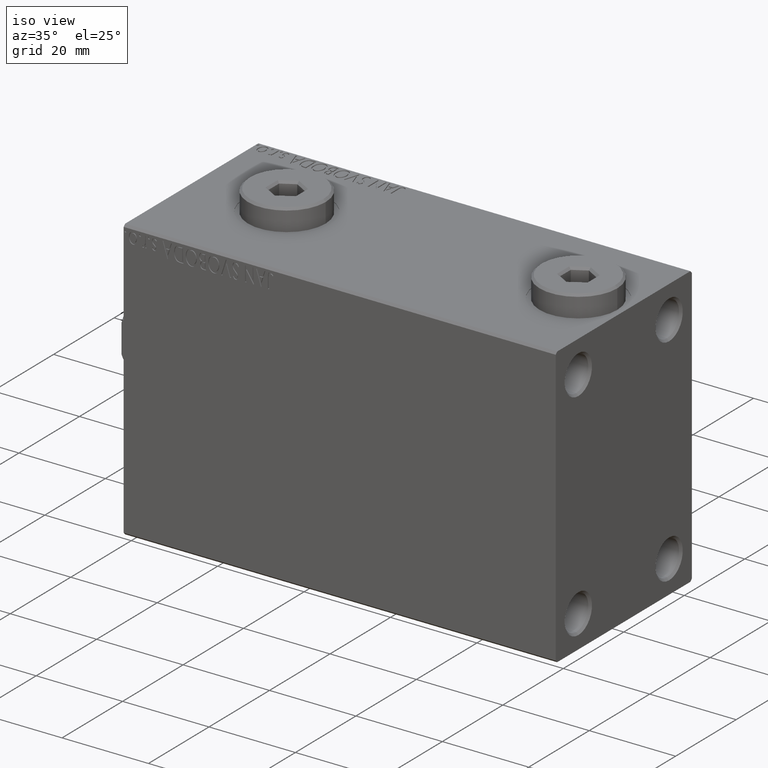
[diagram: clean part render]
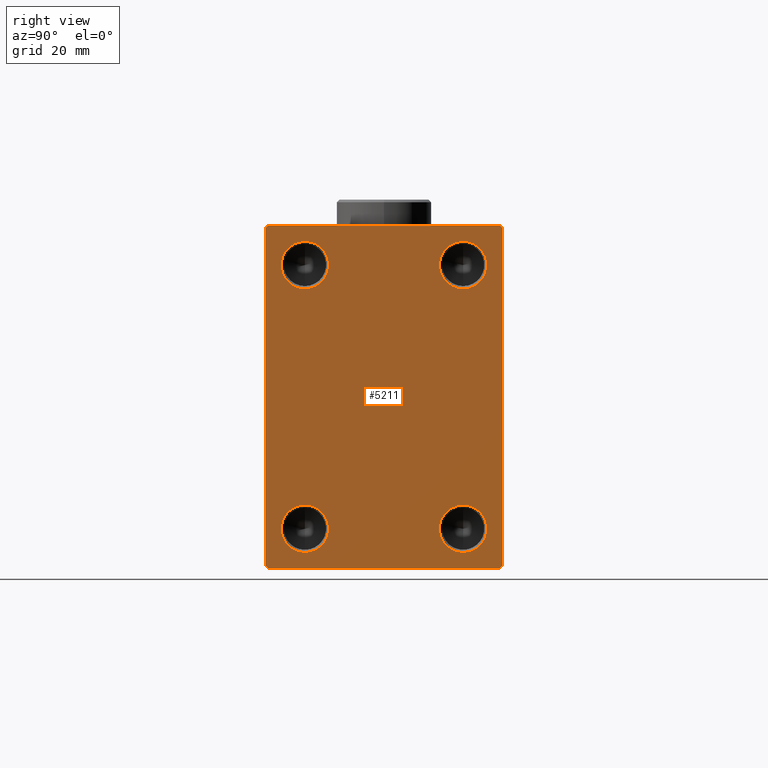
[diagram: tour spotlight — one face highlighted and labeled with its STEP entity id]
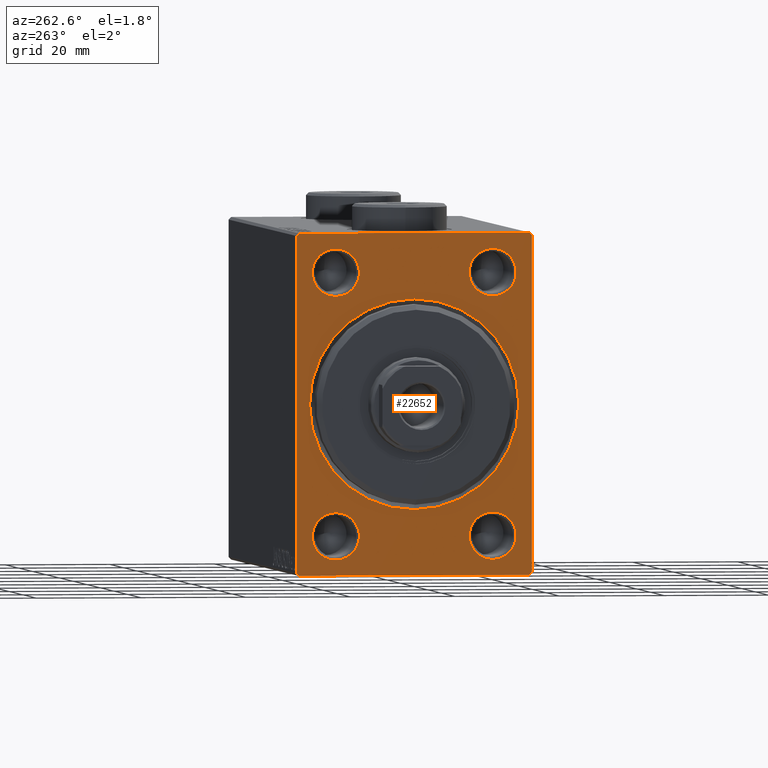
[diagram: tour spotlight — one face highlighted and labeled with its STEP entity id]
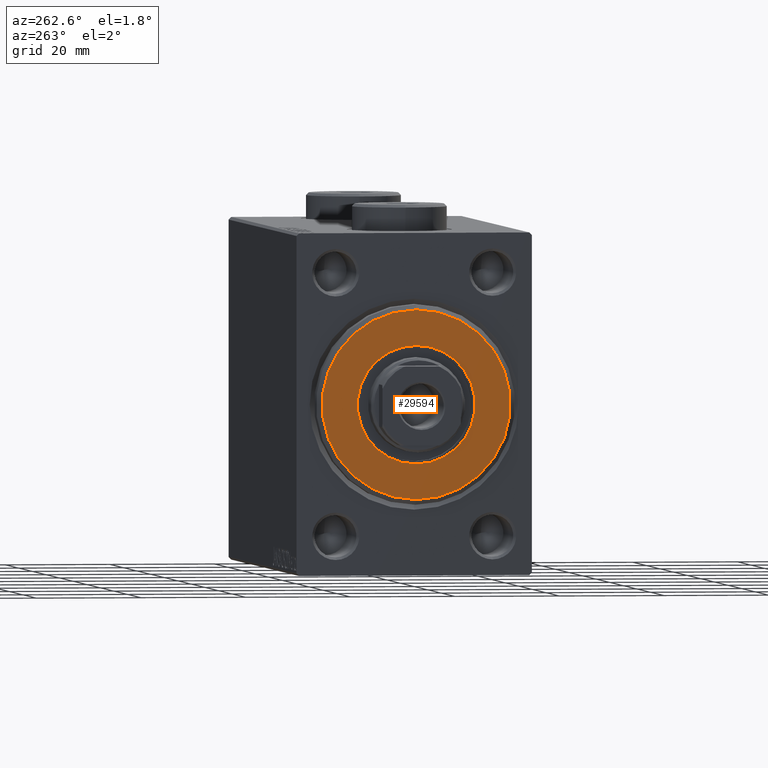
[diagram: tour spotlight — one face highlighted and labeled with its STEP entity id]
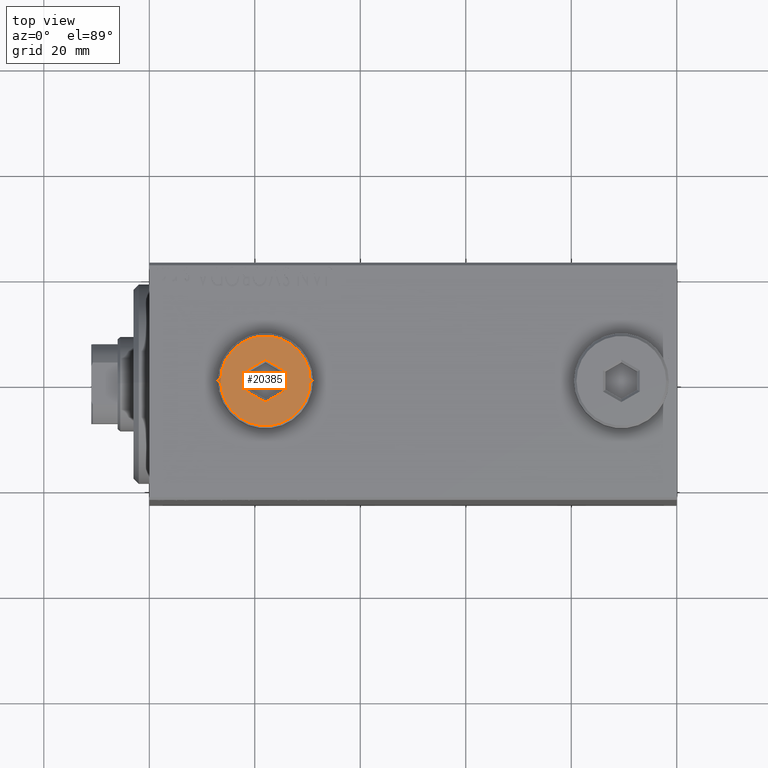
[diagram: tour spotlight — one face highlighted and labeled with its STEP entity id]
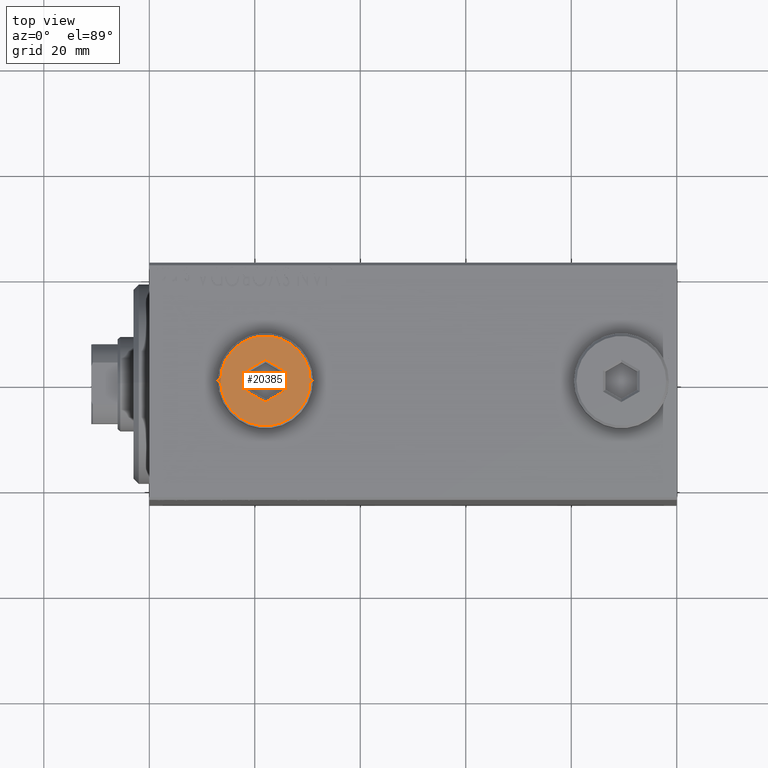
[diagram: tour spotlight — one face highlighted and labeled with its STEP entity id]
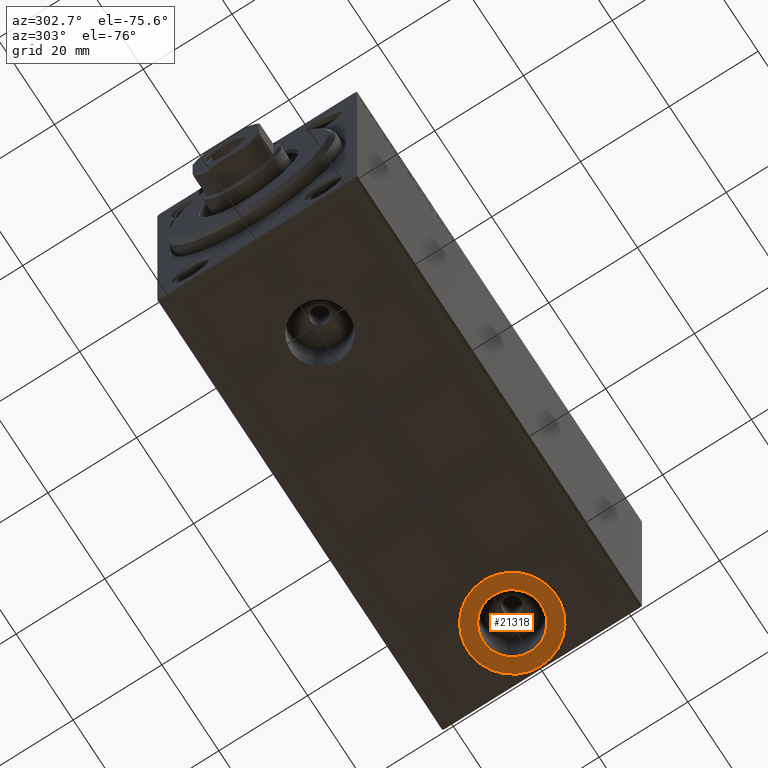
[diagram: tour spotlight — one face highlighted and labeled with its STEP entity id]
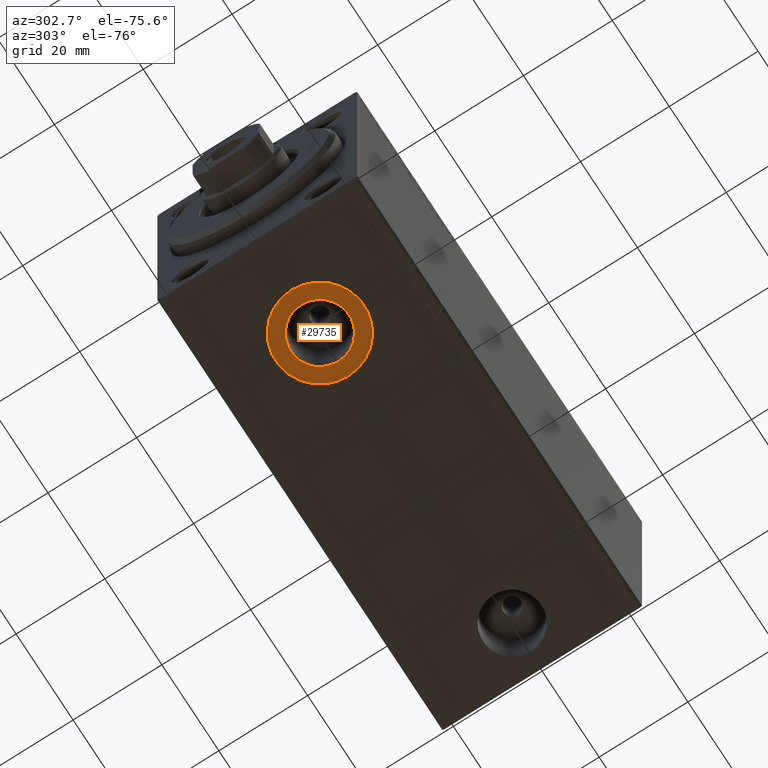
[diagram: tour spotlight — one face highlighted and labeled with its STEP entity id]
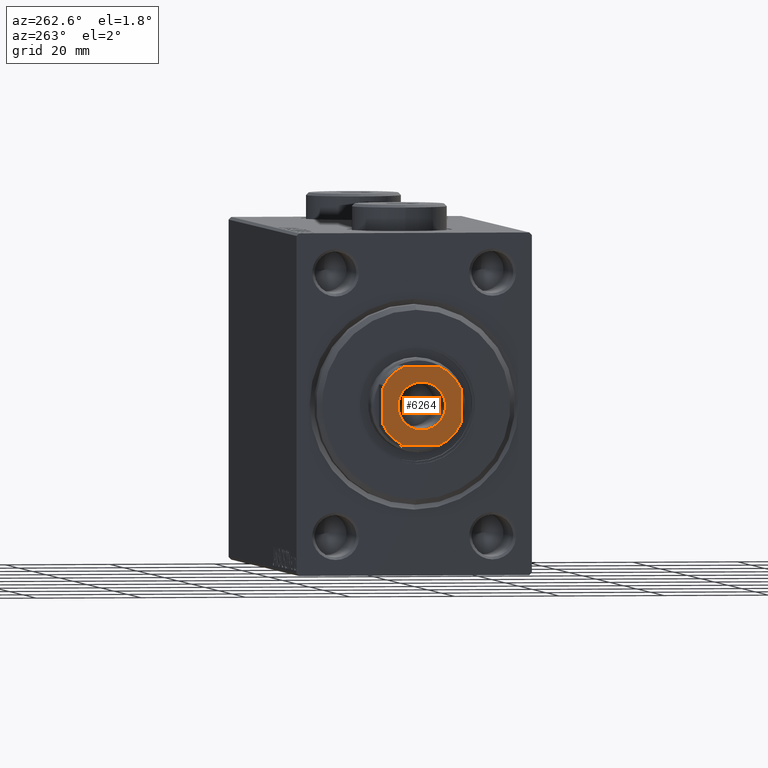
[diagram: tour spotlight — one face highlighted and labeled with its STEP entity id]
A machine part: a face-by-face anatomy tour. The part has 935 B-rep faces; the first image is the clean iso view, then the 8 largest visible faces are spotlighted one at a time (largest first), each with its STEP entity span.

Face 1 — right view, entity #5211. In plain terms, the highlighted planar face has unit normal (1, 0, 0).
Definition (entity closure, byte-faithful):
#15 = CARTESIAN_POINT ( 'NONE',  ( 100.0000000000000000, 27.25000000000033040, -27.24999999999957367 ) ) ;
#354 = LINE ( 'NONE', #38366, #7802 ) ;
#824 = DIRECTION ( 'NONE',  ( 1.000000000000000000, -0.000000000000000000, -0.000000000000000000 ) ) ;
#946 = EDGE_CURVE ( 'NONE', #22036, #9447, #10759, .T. ) ;
#979 = CARTESIAN_POINT ( 'NONE',  ( 100.0000000000000000, 15.00000000000000178, -25.00000000000000000 ) ) ;
#1039 = AXIS2_PLACEMENT_3D ( 'NONE', #13995, #11446, #21580 ) ;
#2747 = EDGE_CURVE ( 'NONE', #31197, #17331, #27390, .T. ) ;
#3081 = LINE ( 'NONE', #30039, #32066 ) ;
#3280 = EDGE_LOOP ( 'NONE', ( #26240, #3331 ) ) ;
#3331 = ORIENTED_EDGE ( 'NONE', *, *, #18116, .F. ) ;
#3932 = CARTESIAN_POINT ( 'NONE',  ( 100.0000000000000000, 15.00000000000000178, 25.00000000000000000 ) ) ;
#4527 = DIRECTION ( 'NONE',  ( 0.000000000000000000, -1.067522139062650425E-16, 1.000000000000000000 ) ) ;
#4807 = CARTESIAN_POINT ( 'NONE',  ( 100.0000000000000000, 15.00000000000000178, -20.49999999999996092 ) ) ;
#4895 = DIRECTION ( 'NONE',  ( 1.000000000000000000, -0.000000000000000000, -0.000000000000000000 ) ) ;
#4943 = DIRECTION ( 'NONE',  ( 1.000000000000000000, -0.000000000000000000, -0.000000000000000000 ) ) ;
#5125 = DIRECTION ( 'NONE',  ( 0.000000000000000000, 0.000000000000000000, -1.000000000000000000 ) ) ;
#5190 = DIRECTION ( 'NONE',  ( -0.000000000000000000, 0.7071067811865524577, -0.7071067811865426878 ) ) ;
#5211 = ADVANCED_FACE ( 'NONE', ( #38286, #10188, #13205, #9284, #37823 ), #27218, .T. ) ;
#5246 = DIRECTION ( 'NONE',  ( 0.000000000000000000, 0.000000000000000000, -1.000000000000000000 ) ) ;
#5982 = EDGE_CURVE ( 'NONE', #14556, #40033, #29246, .T. ) ;
#6303 = VERTEX_POINT ( 'NONE', #18774 ) ;
#6361 = AXIS2_PLACEMENT_3D ( 'NONE', #33029, #4943, #19223 ) ;
#6400 = EDGE_CURVE ( 'NONE', #22752, #31197, #25896, .T. ) ;
#6494 = ORIENTED_EDGE ( 'NONE', *, *, #5982, .F. ) ;
#7802 = VECTOR ( 'NONE', #35120, 1000.000000000000114 ) ;
#8128 = AXIS2_PLACEMENT_3D ( 'NONE', #979, #4895, #5125 ) ;
#8395 = CARTESIAN_POINT ( 'NONE',  ( 100.0000000000000000, 15.00000000000000178, 25.00000000000000000 ) ) ;
#8425 = DIRECTION ( 'NONE',  ( 0.000000000000000000, 0.000000000000000000, -1.000000000000000000 ) ) ;
#8460 = DIRECTION ( 'NONE',  ( 0.000000000000000000, 0.000000000000000000, -1.000000000000000000 ) ) ;
#8647 = DIRECTION ( 'NONE',  ( 1.000000000000000000, -0.000000000000000000, -0.000000000000000000 ) ) ;
#8690 = ORIENTED_EDGE ( 'NONE', *, *, #15760, .T. ) ;
#9106 = LINE ( 'NONE', #23134, #16018 ) ;
#9284 = FACE_BOUND ( 'NONE', #14331, .T. ) ;
#9447 = VERTEX_POINT ( 'NONE', #37685 ) ;
#9569 = EDGE_CURVE ( 'NONE', #9447, #22036, #27881, .T. ) ;
#9585 = CARTESIAN_POINT ( 'NONE',  ( 100.0000000000000000, 22.50000000000000000, 32.00000000000002132 ) ) ;
#10188 = FACE_BOUND ( 'NONE', #3280, .T. ) ;
#10392 = DIRECTION ( 'NONE',  ( -0.000000000000000000, 0.7071067811865376918, 0.7071067811865573427 ) ) ;
#10715 = CARTESIAN_POINT ( 'NONE',  ( 100.0000000000000000, -22.49999999999999289, -32.00000000000001421 ) ) ;
#10759 = CIRCLE ( 'NONE', #31304, 4.499999999999976019 ) ;
#11446 = DIRECTION ( 'NONE',  ( 1.000000000000000000, -0.000000000000000000, -0.000000000000000000 ) ) ;
#12033 = AXIS2_PLACEMENT_3D ( 'NONE', #29132, #824, #8425 ) ;
#12104 = DIRECTION ( 'NONE',  ( 0.000000000000000000, 0.000000000000000000, -1.000000000000000000 ) ) ;
#12109 = CARTESIAN_POINT ( 'NONE',  ( 100.0000000000000000, -15.00000000000000000, 20.50000000000003197 ) ) ;
#13205 = FACE_BOUND ( 'NONE', #43183, .T. ) ;
#13490 = ORIENTED_EDGE ( 'NONE', *, *, #27416, .T. ) ;
#13995 = CARTESIAN_POINT ( 'NONE',  ( 100.0000000000000000, 15.00000000000000178, -25.00000000000000000 ) ) ;
#14102 = ORIENTED_EDGE ( 'NONE', *, *, #45379, .T. ) ;
#14331 = EDGE_LOOP ( 'NONE', ( #20324, #18295 ) ) ;
#14523 = ORIENTED_EDGE ( 'NONE', *, *, #6400, .T. ) ;
#14555 = ORIENTED_EDGE ( 'NONE', *, *, #19927, .T. ) ;
#14556 = VERTEX_POINT ( 'NONE', #28038 ) ;
#14837 = CARTESIAN_POINT ( 'NONE',  ( 100.0000000000000000, 22.50000000000000000, 32.49999999999999289 ) ) ;
#14908 = ORIENTED_EDGE ( 'NONE', *, *, #44942, .T. ) ;
#14980 = CARTESIAN_POINT ( 'NONE',  ( 100.0000000000000000, 27.24999999999970157, 27.25000000000045830 ) ) ;
#15211 = LINE ( 'NONE', #14980, #29898 ) ;
#15706 = CIRCLE ( 'NONE', #12033, 4.499999999999976019 ) ;
#15760 = EDGE_CURVE ( 'NONE', #44081, #42212, #354, .T. ) ;
#15878 = ORIENTED_EDGE ( 'NONE', *, *, #2747, .T. ) ;
#16018 = VECTOR ( 'NONE', #4527, 1000.000000000000000 ) ;
#17331 = VERTEX_POINT ( 'NONE', #32280 ) ;
#18116 = EDGE_CURVE ( 'NONE', #39269, #31736, #26225, .T. ) ;
#18295 = ORIENTED_EDGE ( 'NONE', *, *, #42357, .F. ) ;
#18614 = DIRECTION ( 'NONE',  ( 1.000000000000000000, -0.000000000000000000, -0.000000000000000000 ) ) ;
#18667 = DIRECTION ( 'NONE',  ( -0.000000000000000000, -0.7071067811865573427, 0.7071067811865376918 ) ) ;
#18774 = CARTESIAN_POINT ( 'NONE',  ( 100.0000000000000000, 22.50000000000000711, -32.00000000000002132 ) ) ;
#19223 = DIRECTION ( 'NONE',  ( 0.000000000000000000, 0.000000000000000000, -1.000000000000000000 ) ) ;
#19659 = DIRECTION ( 'NONE',  ( 0.000000000000000000, 0.000000000000000000, -1.000000000000000000 ) ) ;
#19668 = EDGE_CURVE ( 'NONE', #6303, #26356, #9106, .T. ) ;
#19759 = CIRCLE ( 'NONE', #38132, 4.499999999999976019 ) ;
#19883 = DIRECTION ( 'NONE',  ( 1.000000000000000000, -0.000000000000000000, -0.000000000000000000 ) ) ;
#19927 = EDGE_CURVE ( 'NONE', #41843, #44081, #21512, .T. ) ;
#20324 = ORIENTED_EDGE ( 'NONE', *, *, #26766, .F. ) ;
#20886 = CIRCLE ( 'NONE', #1039, 4.500000000000045297 ) ;
#21512 = LINE ( 'NONE', #14837, #26290 ) ;
#21580 = DIRECTION ( 'NONE',  ( 0.000000000000000000, 0.000000000000000000, -1.000000000000000000 ) ) ;
#22036 = VERTEX_POINT ( 'NONE', #38342 ) ;
#22195 = EDGE_CURVE ( 'NONE', #40033, #14556, #19759, .T. ) ;
#22668 = CARTESIAN_POINT ( 'NONE',  ( 100.0000000000000000, -27.24999999999984368, -27.25000000000022027 ) ) ;
#22752 = VERTEX_POINT ( 'NONE', #10715 ) ;
#23134 = CARTESIAN_POINT ( 'NONE',  ( 100.0000000000000000, 22.50000000000000711, -32.50000000000000711 ) ) ;
#23497 = DIRECTION ( 'NONE',  ( 0.000000000000000000, 1.000000000000000000, 0.000000000000000000 ) ) ;
#23547 = CARTESIAN_POINT ( 'NONE',  ( 100.0000000000000000, 0.000000000000000000, 0.000000000000000000 ) ) ;
#25140 = CARTESIAN_POINT ( 'NONE',  ( 100.0000000000000000, 22.00000000000001421, 32.49999999999999289 ) ) ;
#25756 = CIRCLE ( 'NONE', #8128, 4.500000000000045297 ) ;
#25868 = DIRECTION ( 'NONE',  ( 0.000000000000000000, 0.000000000000000000, -1.000000000000000000 ) ) ;
#25896 = LINE ( 'NONE', #22668, #30005 ) ;
#26225 = CIRCLE ( 'NONE', #6361, 4.499999999999976019 ) ;
#26240 = ORIENTED_EDGE ( 'NONE', *, *, #39135, .F. ) ;
#26290 = VECTOR ( 'NONE', #45493, 1000.000000000000000 ) ;
#26356 = VERTEX_POINT ( 'NONE', #9585 ) ;
#26766 = EDGE_CURVE ( 'NONE', #34509, #32303, #25756, .T. ) ;
#27218 = PLANE ( 'NONE',  #44694 ) ;
#27390 = LINE ( 'NONE', #40796, #27684 ) ;
#27416 = EDGE_CURVE ( 'NONE', #17331, #6303, #29757, .T. ) ;
#27604 = ORIENTED_EDGE ( 'NONE', *, *, #22195, .F. ) ;
#27684 = VECTOR ( 'NONE', #23497, 1000.000000000000000 ) ;
#27881 = CIRCLE ( 'NONE', #31572, 4.499999999999976019 ) ;
#28015 = EDGE_LOOP ( 'NONE', ( #6494, #27604 ) ) ;
#28038 = CARTESIAN_POINT ( 'NONE',  ( 100.0000000000000000, 15.00000000000000178, 29.49999999999997513 ) ) ;
#29132 = CARTESIAN_POINT ( 'NONE',  ( 100.0000000000000000, -15.00000000000000000, 25.00000000000000000 ) ) ;
#29246 = CIRCLE ( 'NONE', #35121, 4.499999999999976019 ) ;
#29593 = CARTESIAN_POINT ( 'NONE',  ( 100.0000000000000000, -15.00000000000000000, -25.00000000000000000 ) ) ;
#29757 = LINE ( 'NONE', #15, #44174 ) ;
#29898 = VECTOR ( 'NONE', #18667, 1000.000000000000114 ) ;
#30005 = VECTOR ( 'NONE', #5190, 1000.000000000000000 ) ;
#30039 = CARTESIAN_POINT ( 'NONE',  ( 100.0000000000000000, -22.49999999999999289, 32.49999999999998579 ) ) ;
#30694 = CARTESIAN_POINT ( 'NONE',  ( 100.0000000000000000, -15.00000000000000000, 29.49999999999997158 ) ) ;
#30950 = CARTESIAN_POINT ( 'NONE',  ( 100.0000000000000000, 15.00000000000000178, 20.50000000000002842 ) ) ;
#31020 = CARTESIAN_POINT ( 'NONE',  ( 100.0000000000000000, -22.49999999999999289, 31.99999999999997158 ) ) ;
#31197 = VERTEX_POINT ( 'NONE', #35284 ) ;
#31304 = AXIS2_PLACEMENT_3D ( 'NONE', #39335, #32626, #8460 ) ;
#31572 = AXIS2_PLACEMENT_3D ( 'NONE', #29593, #8647, #12104 ) ;
#31736 = VERTEX_POINT ( 'NONE', #30694 ) ;
#32066 = VECTOR ( 'NONE', #44113, 1000.000000000000000 ) ;
#32280 = CARTESIAN_POINT ( 'NONE',  ( 100.0000000000000000, 22.00000000000002132, -32.50000000000000711 ) ) ;
#32303 = VERTEX_POINT ( 'NONE', #43605 ) ;
#32626 = DIRECTION ( 'NONE',  ( 1.000000000000000000, -0.000000000000000000, -0.000000000000000000 ) ) ;
#32714 = ORIENTED_EDGE ( 'NONE', *, *, #946, .F. ) ;
#33029 = CARTESIAN_POINT ( 'NONE',  ( 100.0000000000000000, -15.00000000000000000, 25.00000000000000000 ) ) ;
#34376 = CARTESIAN_POINT ( 'NONE',  ( 100.0000000000000000, -21.99999999999996447, 32.49999999999998579 ) ) ;
#34509 = VERTEX_POINT ( 'NONE', #4807 ) ;
#35120 = DIRECTION ( 'NONE',  ( 0.000000000000000000, -0.7071067811865474617, -0.7071067811865474617 ) ) ;
#35121 = AXIS2_PLACEMENT_3D ( 'NONE', #3932, #18614, #5246 ) ;
#35284 = CARTESIAN_POINT ( 'NONE',  ( 100.0000000000000000, -21.99999999999999289, -32.50000000000000711 ) ) ;
#36580 = EDGE_LOOP ( 'NONE', ( #14555, #8690, #14908, #14523, #15878, #13490, #44623, #14102 ) ) ;
#37609 = DIRECTION ( 'NONE',  ( 1.000000000000000000, 0.000000000000000000, 0.000000000000000000 ) ) ;
#37685 = CARTESIAN_POINT ( 'NONE',  ( 100.0000000000000000, -15.00000000000000000, -20.50000000000003197 ) ) ;
#37823 = FACE_OUTER_BOUND ( 'NONE', #36580, .T. ) ;
#38132 = AXIS2_PLACEMENT_3D ( 'NONE', #8395, #19883, #25868 ) ;
#38286 = FACE_BOUND ( 'NONE', #28015, .T. ) ;
#38342 = CARTESIAN_POINT ( 'NONE',  ( 100.0000000000000000, -15.00000000000000000, -29.49999999999997158 ) ) ;
#38366 = CARTESIAN_POINT ( 'NONE',  ( 100.0000000000000000, -27.24999999999997868, 27.24999999999997868 ) ) ;
#38878 = ORIENTED_EDGE ( 'NONE', *, *, #9569, .F. ) ;
#39135 = EDGE_CURVE ( 'NONE', #31736, #39269, #15706, .T. ) ;
#39269 = VERTEX_POINT ( 'NONE', #12109 ) ;
#39335 = CARTESIAN_POINT ( 'NONE',  ( 100.0000000000000000, -15.00000000000000000, -25.00000000000000000 ) ) ;
#40033 = VERTEX_POINT ( 'NONE', #30950 ) ;
#40796 = CARTESIAN_POINT ( 'NONE',  ( 100.0000000000000000, -22.49999999999999289, -32.50000000000000711 ) ) ;
#41843 = VERTEX_POINT ( 'NONE', #25140 ) ;
#42212 = VERTEX_POINT ( 'NONE', #31020 ) ;
#42357 = EDGE_CURVE ( 'NONE', #32303, #34509, #20886, .T. ) ;
#43183 = EDGE_LOOP ( 'NONE', ( #38878, #32714 ) ) ;
#43605 = CARTESIAN_POINT ( 'NONE',  ( 100.0000000000000000, 15.00000000000000178, -29.50000000000004263 ) ) ;
#44081 = VERTEX_POINT ( 'NONE', #34376 ) ;
#44113 = DIRECTION ( 'NONE',  ( 0.000000000000000000, 0.000000000000000000, -1.000000000000000000 ) ) ;
#44174 = VECTOR ( 'NONE', #10392, 1000.000000000000114 ) ;
#44623 = ORIENTED_EDGE ( 'NONE', *, *, #19668, .T. ) ;
#44694 = AXIS2_PLACEMENT_3D ( 'NONE', #23547, #37609, #19659 ) ;
#44942 = EDGE_CURVE ( 'NONE', #42212, #22752, #3081, .T. ) ;
#45379 = EDGE_CURVE ( 'NONE', #26356, #41843, #15211, .T. ) ;
#45493 = DIRECTION ( 'NONE',  ( 0.000000000000000000, -1.000000000000000000, -1.541976423090495633E-16 ) ) ;

Face 2 — auxiliary view, entity #22652. In plain terms, the highlighted planar face has unit normal (1, 0, 0).
Definition (entity closure, byte-faithful):
#50 = CARTESIAN_POINT ( 'NONE',  ( 0.000000000000000000, 0.000000000000000000, 0.000000000000000000 ) ) ;
#232 = CARTESIAN_POINT ( 'NONE',  ( 0.000000000000000000, -22.49999999999999289, 32.49999999999998579 ) ) ;
#374 = EDGE_CURVE ( 'NONE', #5162, #21177, #7797, .T. ) ;
#714 = LINE ( 'NONE', #35941, #12208 ) ;
#856 = CARTESIAN_POINT ( 'NONE',  ( 0.000000000000000000, 15.00000000000000178, 29.49999999999997868 ) ) ;
#967 = ORIENTED_EDGE ( 'NONE', *, *, #20909, .T. ) ;
#1302 = EDGE_CURVE ( 'NONE', #21177, #5162, #25426, .T. ) ;
#1317 = EDGE_LOOP ( 'NONE', ( #30118, #21287 ) ) ;
#1320 = CARTESIAN_POINT ( 'NONE',  ( 0.000000000000000000, 15.00000000000000178, 20.50000000000002487 ) ) ;
#1382 = AXIS2_PLACEMENT_3D ( 'NONE', #16703, #8054, #32676 ) ;
#1437 = CARTESIAN_POINT ( 'NONE',  ( 0.000000000000000000, -15.00000000000000000, 25.00000000000000000 ) ) ;
#1517 = EDGE_CURVE ( 'NONE', #6262, #34166, #28096, .T. ) ;
#1897 = AXIS2_PLACEMENT_3D ( 'NONE', #50, #17787, #6956 ) ;
#2433 = FACE_BOUND ( 'NONE', #32214, .T. ) ;
#3417 = DIRECTION ( 'NONE',  ( 0.000000000000000000, 0.000000000000000000, -1.000000000000000000 ) ) ;
#4012 = CIRCLE ( 'NONE', #31936, 4.499999999999976019 ) ;
#4061 = ORIENTED_EDGE ( 'NONE', *, *, #41755, .T. ) ;
#4817 = PLANE ( 'NONE',  #1382 ) ;
#5162 = VERTEX_POINT ( 'NONE', #17173 ) ;
#5271 = ORIENTED_EDGE ( 'NONE', *, *, #25206, .F. ) ;
#5644 = CIRCLE ( 'NONE', #44650, 4.499999999999976019 ) ;
#6220 = EDGE_CURVE ( 'NONE', #24431, #6673, #35355, .T. ) ;
#6262 = VERTEX_POINT ( 'NONE', #20853 ) ;
#6325 = AXIS2_PLACEMENT_3D ( 'NONE', #42174, #38479, #38245 ) ;
#6367 = VERTEX_POINT ( 'NONE', #22432 ) ;
#6502 = ORIENTED_EDGE ( 'NONE', *, *, #34401, .T. ) ;
#6673 = VERTEX_POINT ( 'NONE', #43150 ) ;
#6732 = EDGE_LOOP ( 'NONE', ( #37096, #8880, #5271, #18412, #19376, #24669, #21006, #967 ) ) ;
#6877 = CARTESIAN_POINT ( 'NONE',  ( 0.000000000000000000, -15.00000000000000000, -25.00000000000000000 ) ) ;
#6956 = DIRECTION ( 'NONE',  ( 0.000000000000000000, 0.000000000000000000, -1.000000000000000000 ) ) ;
#7126 = DIRECTION ( 'NONE',  ( 0.000000000000000000, -1.067522139062650425E-16, 1.000000000000000000 ) ) ;
#7797 = CIRCLE ( 'NONE', #1897, 20.00000000000003197 ) ;
#8054 = DIRECTION ( 'NONE',  ( 1.000000000000000000, 0.000000000000000000, 0.000000000000000000 ) ) ;
#8282 = FACE_BOUND ( 'NONE', #11389, .T. ) ;
#8332 = VERTEX_POINT ( 'NONE', #19506 ) ;
#8505 = FACE_BOUND ( 'NONE', #20108, .T. ) ;
#8880 = ORIENTED_EDGE ( 'NONE', *, *, #20035, .T. ) ;
#9325 = ORIENTED_EDGE ( 'NONE', *, *, #37889, .T. ) ;
#9858 = CARTESIAN_POINT ( 'NONE',  ( 0.000000000000000000, 15.00000000000000178, -25.00000000000000000 ) ) ;
#10186 = CARTESIAN_POINT ( 'NONE',  ( 0.000000000000000000, 22.00000000000001421, 32.49999999999999289 ) ) ;
#10249 = VECTOR ( 'NONE', #34397, 1000.000000000000114 ) ;
#10831 = AXIS2_PLACEMENT_3D ( 'NONE', #20452, #16999, #31038 ) ;
#10933 = VECTOR ( 'NONE', #26317, 1000.000000000000000 ) ;
#11159 = CIRCLE ( 'NONE', #17776, 4.499999999999976019 ) ;
#11164 = EDGE_CURVE ( 'NONE', #36108, #6673, #714, .T. ) ;
#11389 = EDGE_LOOP ( 'NONE', ( #4061, #18798 ) ) ;
#12174 = AXIS2_PLACEMENT_3D ( 'NONE', #41883, #24815, #24347 ) ;
#12190 = LINE ( 'NONE', #36598, #26424 ) ;
#12208 = VECTOR ( 'NONE', #32943, 1000.000000000000000 ) ;
#12295 = CARTESIAN_POINT ( 'NONE',  ( 0.000000000000000000, -21.99999999999999289, -32.50000000000000711 ) ) ;
#12622 = CARTESIAN_POINT ( 'NONE',  ( 0.000000000000000000, -21.99999999999999289, -32.50000000000000711 ) ) ;
#12860 = CARTESIAN_POINT ( 'NONE',  ( 0.000000000000000000, 22.50000000000000711, -32.00000000000002132 ) ) ;
#13464 = CARTESIAN_POINT ( 'NONE',  ( 0.000000000000000000, 22.00000000000001421, 32.49999999999999289 ) ) ;
#13813 = VECTOR ( 'NONE', #22180, 1000.000000000000114 ) ;
#14518 = EDGE_CURVE ( 'NONE', #24610, #19262, #20246, .T. ) ;
#14724 = ORIENTED_EDGE ( 'NONE', *, *, #18538, .T. ) ;
#15361 = VERTEX_POINT ( 'NONE', #20013 ) ;
#15840 = CARTESIAN_POINT ( 'NONE',  ( 0.000000000000000000, 15.00000000000000178, -20.49999999999995737 ) ) ;
#16321 = EDGE_CURVE ( 'NONE', #18704, #24527, #34271, .T. ) ;
#16703 = CARTESIAN_POINT ( 'NONE',  ( 0.000000000000000000, 0.000000000000000000, 0.000000000000000000 ) ) ;
#16705 = VERTEX_POINT ( 'NONE', #45393 ) ;
#16999 = DIRECTION ( 'NONE',  ( 1.000000000000000000, 0.000000000000000000, 0.000000000000000000 ) ) ;
#17173 = CARTESIAN_POINT ( 'NONE',  ( 0.000000000000000000, 2.449293598294710063E-15, -20.00000000000003197 ) ) ;
#17251 = EDGE_LOOP ( 'NONE', ( #6502, #27999 ) ) ;
#17776 = AXIS2_PLACEMENT_3D ( 'NONE', #31529, #27601, #45156 ) ;
#17787 = DIRECTION ( 'NONE',  ( 1.000000000000000000, 0.000000000000000000, 0.000000000000000000 ) ) ;
#18232 = CARTESIAN_POINT ( 'NONE',  ( 0.000000000000000000, 0.000000000000000000, 20.00000000000003197 ) ) ;
#18293 = VERTEX_POINT ( 'NONE', #36943 ) ;
#18412 = ORIENTED_EDGE ( 'NONE', *, *, #28118, .T. ) ;
#18538 = EDGE_CURVE ( 'NONE', #24527, #18704, #35835, .T. ) ;
#18594 = CARTESIAN_POINT ( 'NONE',  ( 0.000000000000000000, 15.00000000000000178, -29.50000000000004619 ) ) ;
#18648 = FACE_BOUND ( 'NONE', #17251, .T. ) ;
#18704 = VERTEX_POINT ( 'NONE', #1320 ) ;
#18798 = ORIENTED_EDGE ( 'NONE', *, *, #31968, .T. ) ;
#18947 = DIRECTION ( 'NONE',  ( 0.000000000000000000, 0.000000000000000000, -1.000000000000000000 ) ) ;
#19262 = VERTEX_POINT ( 'NONE', #15840 ) ;
#19376 = ORIENTED_EDGE ( 'NONE', *, *, #21386, .F. ) ;
#19506 = CARTESIAN_POINT ( 'NONE',  ( 0.000000000000000000, -21.99999999999996447, 32.49999999999998579 ) ) ;
#20013 = CARTESIAN_POINT ( 'NONE',  ( 0.000000000000000000, -15.00000000000000000, -20.50000000000002487 ) ) ;
#20035 = EDGE_CURVE ( 'NONE', #6262, #8332, #29320, .T. ) ;
#20108 = EDGE_LOOP ( 'NONE', ( #9325, #24473 ) ) ;
#20246 = CIRCLE ( 'NONE', #12174, 4.500000000000045297 ) ;
#20338 = VECTOR ( 'NONE', #42860, 1000.000000000000000 ) ;
#20452 = CARTESIAN_POINT ( 'NONE',  ( 0.000000000000000000, 15.00000000000000178, 25.00000000000000000 ) ) ;
#20853 = CARTESIAN_POINT ( 'NONE',  ( 0.000000000000000000, -22.49999999999999289, 31.99999999999997158 ) ) ;
#20909 = EDGE_CURVE ( 'NONE', #36108, #34166, #43849, .T. ) ;
#21006 = ORIENTED_EDGE ( 'NONE', *, *, #11164, .F. ) ;
#21177 = VERTEX_POINT ( 'NONE', #18232 ) ;
#21287 = ORIENTED_EDGE ( 'NONE', *, *, #374, .T. ) ;
#21319 = DIRECTION ( 'NONE',  ( 0.000000000000000000, -0.7071067811865376918, -0.7071067811865573427 ) ) ;
#21386 = EDGE_CURVE ( 'NONE', #24431, #38162, #24616, .T. ) ;
#21562 = AXIS2_PLACEMENT_3D ( 'NONE', #9858, #23885, #3417 ) ;
#22180 = DIRECTION ( 'NONE',  ( -0.000000000000000000, 0.7071067811865474617, 0.7071067811865474617 ) ) ;
#22244 = VERTEX_POINT ( 'NONE', #10186 ) ;
#22397 = CARTESIAN_POINT ( 'NONE',  ( 0.000000000000000000, -22.49999999999999289, 31.99999999999997158 ) ) ;
#22432 = CARTESIAN_POINT ( 'NONE',  ( 0.000000000000000000, -15.00000000000000000, 29.49999999999997868 ) ) ;
#22652 = ADVANCED_FACE ( 'NONE', ( #25759, #18648, #8282, #2433, #8505, #36141 ), #4817, .F. ) ;
#22765 = DIRECTION ( 'NONE',  ( 0.000000000000000000, -1.000000000000000000, -1.541976423090495633E-16 ) ) ;
#22777 = ORIENTED_EDGE ( 'NONE', *, *, #16321, .T. ) ;
#23396 = VECTOR ( 'NONE', #7126, 1000.000000000000000 ) ;
#23885 = DIRECTION ( 'NONE',  ( 1.000000000000000000, 0.000000000000000000, 0.000000000000000000 ) ) ;
#24347 = DIRECTION ( 'NONE',  ( 0.000000000000000000, 0.000000000000000000, -1.000000000000000000 ) ) ;
#24366 = DIRECTION ( 'NONE',  ( 0.000000000000000000, 0.000000000000000000, -1.000000000000000000 ) ) ;
#24431 = VERTEX_POINT ( 'NONE', #12860 ) ;
#24473 = ORIENTED_EDGE ( 'NONE', *, *, #14518, .T. ) ;
#24527 = VERTEX_POINT ( 'NONE', #856 ) ;
#24610 = VERTEX_POINT ( 'NONE', #18594 ) ;
#24616 = LINE ( 'NONE', #38681, #23396 ) ;
#24669 = ORIENTED_EDGE ( 'NONE', *, *, #6220, .T. ) ;
#24815 = DIRECTION ( 'NONE',  ( 1.000000000000000000, 0.000000000000000000, 0.000000000000000000 ) ) ;
#25206 = EDGE_CURVE ( 'NONE', #22244, #8332, #12190, .T. ) ;
#25357 = CARTESIAN_POINT ( 'NONE',  ( 0.000000000000000000, -15.00000000000000000, 25.00000000000000000 ) ) ;
#25426 = CIRCLE ( 'NONE', #42391, 20.00000000000003197 ) ;
#25759 = FACE_BOUND ( 'NONE', #1317, .T. ) ;
#26317 = DIRECTION ( 'NONE',  ( -0.000000000000000000, -0.7071067811865524577, 0.7071067811865426878 ) ) ;
#26424 = VECTOR ( 'NONE', #22765, 1000.000000000000000 ) ;
#26509 = CARTESIAN_POINT ( 'NONE',  ( 0.000000000000000000, 0.000000000000000000, 0.000000000000000000 ) ) ;
#27601 = DIRECTION ( 'NONE',  ( 1.000000000000000000, 0.000000000000000000, 0.000000000000000000 ) ) ;
#27999 = ORIENTED_EDGE ( 'NONE', *, *, #45580, .T. ) ;
#28096 = LINE ( 'NONE', #232, #20338 ) ;
#28118 = EDGE_CURVE ( 'NONE', #22244, #38162, #30048, .T. ) ;
#28826 = DIRECTION ( 'NONE',  ( 1.000000000000000000, 0.000000000000000000, 0.000000000000000000 ) ) ;
#29320 = LINE ( 'NONE', #22397, #13813 ) ;
#30048 = LINE ( 'NONE', #13464, #10249 ) ;
#30118 = ORIENTED_EDGE ( 'NONE', *, *, #1302, .T. ) ;
#30198 = AXIS2_PLACEMENT_3D ( 'NONE', #1437, #33202, #18947 ) ;
#31038 = DIRECTION ( 'NONE',  ( 0.000000000000000000, 0.000000000000000000, -1.000000000000000000 ) ) ;
#31529 = CARTESIAN_POINT ( 'NONE',  ( 0.000000000000000000, -15.00000000000000000, -25.00000000000000000 ) ) ;
#31936 = AXIS2_PLACEMENT_3D ( 'NONE', #25357, #28826, #39428 ) ;
#31968 = EDGE_CURVE ( 'NONE', #18293, #6367, #39796, .T. ) ;
#32214 = EDGE_LOOP ( 'NONE', ( #14724, #22777 ) ) ;
#32676 = DIRECTION ( 'NONE',  ( 0.000000000000000000, 0.000000000000000000, -1.000000000000000000 ) ) ;
#32943 = DIRECTION ( 'NONE',  ( 0.000000000000000000, 1.000000000000000000, 0.000000000000000000 ) ) ;
#32974 = DIRECTION ( 'NONE',  ( 0.000000000000000000, 0.000000000000000000, -1.000000000000000000 ) ) ;
#33202 = DIRECTION ( 'NONE',  ( 1.000000000000000000, 0.000000000000000000, 0.000000000000000000 ) ) ;
#34166 = VERTEX_POINT ( 'NONE', #35145 ) ;
#34271 = CIRCLE ( 'NONE', #6325, 4.499999999999976019 ) ;
#34397 = DIRECTION ( 'NONE',  ( -0.000000000000000000, 0.7071067811865573427, -0.7071067811865376918 ) ) ;
#34401 = EDGE_CURVE ( 'NONE', #15361, #16705, #11159, .T. ) ;
#34955 = DIRECTION ( 'NONE',  ( 1.000000000000000000, 0.000000000000000000, 0.000000000000000000 ) ) ;
#35145 = CARTESIAN_POINT ( 'NONE',  ( 0.000000000000000000, -22.49999999999999289, -32.00000000000001421 ) ) ;
#35355 = LINE ( 'NONE', #42534, #44721 ) ;
#35835 = CIRCLE ( 'NONE', #10831, 4.499999999999976019 ) ;
#35941 = CARTESIAN_POINT ( 'NONE',  ( 0.000000000000000000, -22.49999999999999289, -32.50000000000000711 ) ) ;
#36108 = VERTEX_POINT ( 'NONE', #12622 ) ;
#36141 = FACE_OUTER_BOUND ( 'NONE', #6732, .T. ) ;
#36598 = CARTESIAN_POINT ( 'NONE',  ( 0.000000000000000000, 22.50000000000000000, 32.49999999999999289 ) ) ;
#36943 = CARTESIAN_POINT ( 'NONE',  ( 0.000000000000000000, -15.00000000000000000, 20.50000000000002487 ) ) ;
#37096 = ORIENTED_EDGE ( 'NONE', *, *, #1517, .F. ) ;
#37336 = DIRECTION ( 'NONE',  ( 1.000000000000000000, 0.000000000000000000, 0.000000000000000000 ) ) ;
#37889 = EDGE_CURVE ( 'NONE', #19262, #24610, #41417, .T. ) ;
#38162 = VERTEX_POINT ( 'NONE', #38364 ) ;
#38245 = DIRECTION ( 'NONE',  ( 0.000000000000000000, 0.000000000000000000, -1.000000000000000000 ) ) ;
#38364 = CARTESIAN_POINT ( 'NONE',  ( 0.000000000000000000, 22.50000000000000000, 32.00000000000002132 ) ) ;
#38479 = DIRECTION ( 'NONE',  ( 1.000000000000000000, 0.000000000000000000, 0.000000000000000000 ) ) ;
#38681 = CARTESIAN_POINT ( 'NONE',  ( 0.000000000000000000, 22.50000000000000711, -32.50000000000000711 ) ) ;
#39428 = DIRECTION ( 'NONE',  ( 0.000000000000000000, 0.000000000000000000, -1.000000000000000000 ) ) ;
#39796 = CIRCLE ( 'NONE', #30198, 4.499999999999976019 ) ;
#41417 = CIRCLE ( 'NONE', #21562, 4.500000000000045297 ) ;
#41755 = EDGE_CURVE ( 'NONE', #6367, #18293, #4012, .T. ) ;
#41883 = CARTESIAN_POINT ( 'NONE',  ( 0.000000000000000000, 15.00000000000000178, -25.00000000000000000 ) ) ;
#42174 = CARTESIAN_POINT ( 'NONE',  ( 0.000000000000000000, 15.00000000000000178, 25.00000000000000000 ) ) ;
#42391 = AXIS2_PLACEMENT_3D ( 'NONE', #26509, #37336, #32974 ) ;
#42534 = CARTESIAN_POINT ( 'NONE',  ( 0.000000000000000000, 22.50000000000000711, -32.00000000000002132 ) ) ;
#42860 = DIRECTION ( 'NONE',  ( 0.000000000000000000, 0.000000000000000000, -1.000000000000000000 ) ) ;
#43150 = CARTESIAN_POINT ( 'NONE',  ( 0.000000000000000000, 22.00000000000002132, -32.50000000000000711 ) ) ;
#43849 = LINE ( 'NONE', #12295, #10933 ) ;
#44650 = AXIS2_PLACEMENT_3D ( 'NONE', #6877, #34955, #24366 ) ;
#44721 = VECTOR ( 'NONE', #21319, 1000.000000000000114 ) ;
#45156 = DIRECTION ( 'NONE',  ( 0.000000000000000000, 0.000000000000000000, -1.000000000000000000 ) ) ;
#45393 = CARTESIAN_POINT ( 'NONE',  ( 0.000000000000000000, -15.00000000000000000, -29.49999999999997868 ) ) ;
#45580 = EDGE_CURVE ( 'NONE', #16705, #15361, #5644, .T. ) ;

Face 3 — auxiliary view, entity #29594. In plain terms, the highlighted planar face has unit normal (-1, 0, 0).
Definition (entity closure, byte-faithful):
#4191 = EDGE_CURVE ( 'NONE', #8492, #9932, #8657, .T. ) ;
#4411 = AXIS2_PLACEMENT_3D ( 'NONE', #41183, #23862, #37930 ) ;
#4932 = ORIENTED_EDGE ( 'NONE', *, *, #12345, .T. ) ;
#5234 = DIRECTION ( 'NONE',  ( 1.000000000000000000, -0.000000000000000000, 0.000000000000000000 ) ) ;
#8492 = VERTEX_POINT ( 'NONE', #10964 ) ;
#8657 = CIRCLE ( 'NONE', #33641, 11.25000000000000178 ) ;
#9211 = AXIS2_PLACEMENT_3D ( 'NONE', #33549, #44399, #16288 ) ;
#9932 = VERTEX_POINT ( 'NONE', #40375 ) ;
#10964 = CARTESIAN_POINT ( 'NONE',  ( 3.000000000000000000, 1.377727649040772586E-15, 11.25000000000000178 ) ) ;
#11242 = DIRECTION ( 'NONE',  ( 1.000000000000000000, 0.000000000000000000, 0.000000000000000000 ) ) ;
#11488 = AXIS2_PLACEMENT_3D ( 'NONE', #36776, #5234, #33086 ) ;
#11651 = VERTEX_POINT ( 'NONE', #27761 ) ;
#12345 = EDGE_CURVE ( 'NONE', #29686, #11651, #42400, .T. ) ;
#12929 = CIRCLE ( 'NONE', #23229, 11.25000000000000178 ) ;
#13086 = FACE_BOUND ( 'NONE', #24700, .T. ) ;
#14723 = EDGE_CURVE ( 'NONE', #11651, #29686, #26900, .T. ) ;
#14737 = EDGE_CURVE ( 'NONE', #9932, #8492, #12929, .T. ) ;
#16288 = DIRECTION ( 'NONE',  ( 0.000000000000000000, 0.000000000000000000, -1.000000000000000000 ) ) ;
#19580 = ORIENTED_EDGE ( 'NONE', *, *, #4191, .F. ) ;
#21577 = CARTESIAN_POINT ( 'NONE',  ( 3.000000000000000000, 2.265596578422603002E-15, -17.99999999999999645 ) ) ;
#21815 = DIRECTION ( 'NONE',  ( 0.000000000000000000, 0.000000000000000000, -1.000000000000000000 ) ) ;
#23229 = AXIS2_PLACEMENT_3D ( 'NONE', #43700, #11242, #21815 ) ;
#23862 = DIRECTION ( 'NONE',  ( 1.000000000000000000, -0.000000000000000000, 0.000000000000000000 ) ) ;
#24587 = DIRECTION ( 'NONE',  ( 1.000000000000000000, 0.000000000000000000, 0.000000000000000000 ) ) ;
#24700 = EDGE_LOOP ( 'NONE', ( #29237, #19580 ) ) ;
#26900 = CIRCLE ( 'NONE', #11488, 17.99999999999999645 ) ;
#27761 = CARTESIAN_POINT ( 'NONE',  ( 3.000000000000000000, 0.000000000000000000, 17.99999999999999645 ) ) ;
#28143 = EDGE_LOOP ( 'NONE', ( #43695, #4932 ) ) ;
#29237 = ORIENTED_EDGE ( 'NONE', *, *, #14737, .F. ) ;
#29594 = ADVANCED_FACE ( 'NONE', ( #44646, #13086 ), #37037, .T. ) ;
#29686 = VERTEX_POINT ( 'NONE', #21577 ) ;
#33086 = DIRECTION ( 'NONE',  ( 0.000000000000000000, 0.000000000000000000, -1.000000000000000000 ) ) ;
#33549 = CARTESIAN_POINT ( 'NONE',  ( 3.000000000000000000, 0.000000000000000000, 0.000000000000000000 ) ) ;
#33641 = AXIS2_PLACEMENT_3D ( 'NONE', #42118, #24587, #38648 ) ;
#36776 = CARTESIAN_POINT ( 'NONE',  ( 3.000000000000000000, 0.000000000000000000, 0.000000000000000000 ) ) ;
#37037 = PLANE ( 'NONE',  #4411 ) ;
#37930 = DIRECTION ( 'NONE',  ( 0.000000000000000000, 0.000000000000000000, -1.000000000000000000 ) ) ;
#38648 = DIRECTION ( 'NONE',  ( 0.000000000000000000, 0.000000000000000000, -1.000000000000000000 ) ) ;
#40375 = CARTESIAN_POINT ( 'NONE',  ( 3.000000000000000000, 0.000000000000000000, -11.25000000000000178 ) ) ;
#41183 = CARTESIAN_POINT ( 'NONE',  ( 3.000000000000000000, 0.000000000000000000, 0.000000000000000000 ) ) ;
#42118 = CARTESIAN_POINT ( 'NONE',  ( 3.000000000000000000, 0.000000000000000000, 0.000000000000000000 ) ) ;
#42400 = CIRCLE ( 'NONE', #9211, 17.99999999999999645 ) ;
#43695 = ORIENTED_EDGE ( 'NONE', *, *, #14723, .T. ) ;
#43700 = CARTESIAN_POINT ( 'NONE',  ( 3.000000000000000000, 0.000000000000000000, 0.000000000000000000 ) ) ;
#44399 = DIRECTION ( 'NONE',  ( 1.000000000000000000, -0.000000000000000000, 0.000000000000000000 ) ) ;
#44646 = FACE_OUTER_BOUND ( 'NONE', #28143, .T. ) ;

Face 4 — top view, entity #20385. In plain terms, the highlighted planar face has unit normal (0, 0, 1).
Definition (entity closure, byte-faithful):
#358 = CARTESIAN_POINT ( 'NONE',  ( -8.500000000000010658, 0.000000000000000000, 5.000000000000000000 ) ) ;
#675 = CARTESIAN_POINT ( 'NONE',  ( 8.500000000000010658, 1.071565949253934716E-15, 5.000000000000000000 ) ) ;
#1451 = VECTOR ( 'NONE', #44485, 1000.000000000000000 ) ;
#1747 = EDGE_LOOP ( 'NONE', ( #35270, #26819, #21055, #20515, #29903, #45124 ) ) ;
#2173 = VECTOR ( 'NONE', #24979, 1000.000000000000000 ) ;
#2187 = CARTESIAN_POINT ( 'NONE',  ( -3.500000000000006661, 2.020725942163692945, 5.000000000000000000 ) ) ;
#2914 = CIRCLE ( 'NONE', #39726, 8.500000000000010658 ) ;
#4343 = VERTEX_POINT ( 'NONE', #33094 ) ;
#5039 = VERTEX_POINT ( 'NONE', #28790 ) ;
#5316 = CARTESIAN_POINT ( 'NONE',  ( 0.000000000000000000, 0.000000000000000000, 5.000000000000000000 ) ) ;
#5451 = DIRECTION ( 'NONE',  ( 1.000000000000000000, 0.000000000000000000, 0.000000000000000000 ) ) ;
#9254 = LINE ( 'NONE', #23296, #19891 ) ;
#9558 = VERTEX_POINT ( 'NONE', #358 ) ;
#9730 = LINE ( 'NONE', #13427, #45526 ) ;
#10127 = VERTEX_POINT ( 'NONE', #31790 ) ;
#10685 = VERTEX_POINT ( 'NONE', #2187 ) ;
#10895 = AXIS2_PLACEMENT_3D ( 'NONE', #5316, #17426, #37921 ) ;
#10952 = LINE ( 'NONE', #18302, #2173 ) ;
#11127 = VERTEX_POINT ( 'NONE', #43333 ) ;
#11878 = VECTOR ( 'NONE', #27312, 1000.000000000000000 ) ;
#12975 = DIRECTION ( 'NONE',  ( 0.000000000000000000, 1.000000000000000000, 0.000000000000000000 ) ) ;
#13427 = CARTESIAN_POINT ( 'NONE',  ( -3.500000000000006661, 1.732050807568878081, 5.000000000000000000 ) ) ;
#13982 = LINE ( 'NONE', #31223, #11878 ) ;
#14461 = EDGE_CURVE ( 'NONE', #10685, #5039, #34255, .T. ) ;
#17426 = DIRECTION ( 'NONE',  ( 0.000000000000000000, 0.000000000000000000, 1.000000000000000000 ) ) ;
#17609 = DIRECTION ( 'NONE',  ( 0.000000000000000000, 0.000000000000000000, 1.000000000000000000 ) ) ;
#18112 = AXIS2_PLACEMENT_3D ( 'NONE', #22478, #33526, #5451 ) ;
#18302 = CARTESIAN_POINT ( 'NONE',  ( 3.250000000000003109, 2.165063509461103042, 5.000000000000000000 ) ) ;
#19891 = VECTOR ( 'NONE', #37351, 1000.000000000000114 ) ;
#20380 = DIRECTION ( 'NONE',  ( 1.000000000000000000, 0.000000000000000000, 0.000000000000000000 ) ) ;
#20385 = ADVANCED_FACE ( 'NONE', ( #20421, #27093 ), #20654, .T. ) ;
#20421 = FACE_BOUND ( 'NONE', #1747, .T. ) ;
#20515 = ORIENTED_EDGE ( 'NONE', *, *, #34081, .T. ) ;
#20654 = PLANE ( 'NONE',  #10895 ) ;
#21055 = ORIENTED_EDGE ( 'NONE', *, *, #24856, .T. ) ;
#21492 = VERTEX_POINT ( 'NONE', #675 ) ;
#22199 = EDGE_CURVE ( 'NONE', #11127, #10685, #9730, .T. ) ;
#22478 = CARTESIAN_POINT ( 'NONE',  ( 0.000000000000000000, 0.000000000000000000, 5.000000000000000000 ) ) ;
#22821 = CARTESIAN_POINT ( 'NONE',  ( 0.2500000000000027756, -3.897114317029979347, 5.000000000000000000 ) ) ;
#22995 = DIRECTION ( 'NONE',  ( 0.8660254037844387076, 0.4999999999999998335, 0.000000000000000000 ) ) ;
#23253 = CIRCLE ( 'NONE', #18112, 8.500000000000010658 ) ;
#23272 = LINE ( 'NONE', #22821, #1451 ) ;
#23296 = CARTESIAN_POINT ( 'NONE',  ( -3.250000000000003109, -2.165063509461102598, 5.000000000000000000 ) ) ;
#23905 = VECTOR ( 'NONE', #22995, 1000.000000000000000 ) ;
#24507 = CARTESIAN_POINT ( 'NONE',  ( 0.000000000000000000, 0.000000000000000000, 5.000000000000000000 ) ) ;
#24856 = EDGE_CURVE ( 'NONE', #5039, #4343, #10952, .T. ) ;
#24979 = DIRECTION ( 'NONE',  ( 0.8660254037844387076, -0.4999999999999998890, 0.000000000000000000 ) ) ;
#25016 = EDGE_CURVE ( 'NONE', #10127, #25270, #23272, .T. ) ;
#25270 = VERTEX_POINT ( 'NONE', #40741 ) ;
#26819 = ORIENTED_EDGE ( 'NONE', *, *, #14461, .T. ) ;
#27093 = FACE_OUTER_BOUND ( 'NONE', #35774, .T. ) ;
#27312 = DIRECTION ( 'NONE',  ( 0.000000000000000000, -1.000000000000000000, 0.000000000000000000 ) ) ;
#27384 = EDGE_CURVE ( 'NONE', #25270, #11127, #9254, .T. ) ;
#28790 = CARTESIAN_POINT ( 'NONE',  ( 1.590596867181068292E-15, 4.041451884327386779, 5.000000000000000000 ) ) ;
#29903 = ORIENTED_EDGE ( 'NONE', *, *, #25016, .T. ) ;
#30010 = EDGE_CURVE ( 'NONE', #21492, #9558, #2914, .T. ) ;
#30730 = ORIENTED_EDGE ( 'NONE', *, *, #43792, .T. ) ;
#31223 = CARTESIAN_POINT ( 'NONE',  ( 3.500000000000006661, -1.732050807568878303, 5.000000000000000000 ) ) ;
#31790 = CARTESIAN_POINT ( 'NONE',  ( 3.500000000000006661, -2.020725942163693833, 5.000000000000000000 ) ) ;
#33094 = CARTESIAN_POINT ( 'NONE',  ( 3.500000000000006661, 2.020725942163694722, 5.000000000000000000 ) ) ;
#33526 = DIRECTION ( 'NONE',  ( 0.000000000000000000, 0.000000000000000000, 1.000000000000000000 ) ) ;
#34081 = EDGE_CURVE ( 'NONE', #4343, #10127, #13982, .T. ) ;
#34255 = LINE ( 'NONE', #37502, #23905 ) ;
#35270 = ORIENTED_EDGE ( 'NONE', *, *, #22199, .T. ) ;
#35774 = EDGE_LOOP ( 'NONE', ( #30730, #44505 ) ) ;
#37351 = DIRECTION ( 'NONE',  ( -0.8660254037844385966, 0.4999999999999999445, 0.000000000000000000 ) ) ;
#37502 = CARTESIAN_POINT ( 'NONE',  ( -0.2500000000000027756, 3.897114317029978459, 5.000000000000000000 ) ) ;
#37921 = DIRECTION ( 'NONE',  ( 1.000000000000000000, 0.000000000000000000, -0.000000000000000000 ) ) ;
#39726 = AXIS2_PLACEMENT_3D ( 'NONE', #24507, #17609, #20380 ) ;
#40741 = CARTESIAN_POINT ( 'NONE',  ( -1.006139216460143630E-15, -4.041451884327387667, 5.000000000000000000 ) ) ;
#43333 = CARTESIAN_POINT ( 'NONE',  ( -3.500000000000006661, -2.020725942163694278, 5.000000000000000000 ) ) ;
#43792 = EDGE_CURVE ( 'NONE', #9558, #21492, #23253, .T. ) ;
#44485 = DIRECTION ( 'NONE',  ( -0.8660254037844387076, -0.4999999999999998890, 0.000000000000000000 ) ) ;
#44505 = ORIENTED_EDGE ( 'NONE', *, *, #30010, .T. ) ;
#45124 = ORIENTED_EDGE ( 'NONE', *, *, #27384, .T. ) ;
#45526 = VECTOR ( 'NONE', #12975, 1000.000000000000000 ) ;

Face 5 — top view, entity #20385. In plain terms, the highlighted planar face has unit normal (0, 0, 1).
Definition (entity closure, byte-faithful):
#358 = CARTESIAN_POINT ( 'NONE',  ( -8.500000000000010658, 0.000000000000000000, 5.000000000000000000 ) ) ;
#675 = CARTESIAN_POINT ( 'NONE',  ( 8.500000000000010658, 1.071565949253934716E-15, 5.000000000000000000 ) ) ;
#1451 = VECTOR ( 'NONE', #44485, 1000.000000000000000 ) ;
#1747 = EDGE_LOOP ( 'NONE', ( #35270, #26819, #21055, #20515, #29903, #45124 ) ) ;
#2173 = VECTOR ( 'NONE', #24979, 1000.000000000000000 ) ;
#2187 = CARTESIAN_POINT ( 'NONE',  ( -3.500000000000006661, 2.020725942163692945, 5.000000000000000000 ) ) ;
#2914 = CIRCLE ( 'NONE', #39726, 8.500000000000010658 ) ;
#4343 = VERTEX_POINT ( 'NONE', #33094 ) ;
#5039 = VERTEX_POINT ( 'NONE', #28790 ) ;
#5316 = CARTESIAN_POINT ( 'NONE',  ( 0.000000000000000000, 0.000000000000000000, 5.000000000000000000 ) ) ;
#5451 = DIRECTION ( 'NONE',  ( 1.000000000000000000, 0.000000000000000000, 0.000000000000000000 ) ) ;
#9254 = LINE ( 'NONE', #23296, #19891 ) ;
#9558 = VERTEX_POINT ( 'NONE', #358 ) ;
#9730 = LINE ( 'NONE', #13427, #45526 ) ;
#10127 = VERTEX_POINT ( 'NONE', #31790 ) ;
#10685 = VERTEX_POINT ( 'NONE', #2187 ) ;
#10895 = AXIS2_PLACEMENT_3D ( 'NONE', #5316, #17426, #37921 ) ;
#10952 = LINE ( 'NONE', #18302, #2173 ) ;
#11127 = VERTEX_POINT ( 'NONE', #43333 ) ;
#11878 = VECTOR ( 'NONE', #27312, 1000.000000000000000 ) ;
#12975 = DIRECTION ( 'NONE',  ( 0.000000000000000000, 1.000000000000000000, 0.000000000000000000 ) ) ;
#13427 = CARTESIAN_POINT ( 'NONE',  ( -3.500000000000006661, 1.732050807568878081, 5.000000000000000000 ) ) ;
#13982 = LINE ( 'NONE', #31223, #11878 ) ;
#14461 = EDGE_CURVE ( 'NONE', #10685, #5039, #34255, .T. ) ;
#17426 = DIRECTION ( 'NONE',  ( 0.000000000000000000, 0.000000000000000000, 1.000000000000000000 ) ) ;
#17609 = DIRECTION ( 'NONE',  ( 0.000000000000000000, 0.000000000000000000, 1.000000000000000000 ) ) ;
#18112 = AXIS2_PLACEMENT_3D ( 'NONE', #22478, #33526, #5451 ) ;
#18302 = CARTESIAN_POINT ( 'NONE',  ( 3.250000000000003109, 2.165063509461103042, 5.000000000000000000 ) ) ;
#19891 = VECTOR ( 'NONE', #37351, 1000.000000000000114 ) ;
#20380 = DIRECTION ( 'NONE',  ( 1.000000000000000000, 0.000000000000000000, 0.000000000000000000 ) ) ;
#20385 = ADVANCED_FACE ( 'NONE', ( #20421, #27093 ), #20654, .T. ) ;
#20421 = FACE_BOUND ( 'NONE', #1747, .T. ) ;
#20515 = ORIENTED_EDGE ( 'NONE', *, *, #34081, .T. ) ;
#20654 = PLANE ( 'NONE',  #10895 ) ;
#21055 = ORIENTED_EDGE ( 'NONE', *, *, #24856, .T. ) ;
#21492 = VERTEX_POINT ( 'NONE', #675 ) ;
#22199 = EDGE_CURVE ( 'NONE', #11127, #10685, #9730, .T. ) ;
#22478 = CARTESIAN_POINT ( 'NONE',  ( 0.000000000000000000, 0.000000000000000000, 5.000000000000000000 ) ) ;
#22821 = CARTESIAN_POINT ( 'NONE',  ( 0.2500000000000027756, -3.897114317029979347, 5.000000000000000000 ) ) ;
#22995 = DIRECTION ( 'NONE',  ( 0.8660254037844387076, 0.4999999999999998335, 0.000000000000000000 ) ) ;
#23253 = CIRCLE ( 'NONE', #18112, 8.500000000000010658 ) ;
#23272 = LINE ( 'NONE', #22821, #1451 ) ;
#23296 = CARTESIAN_POINT ( 'NONE',  ( -3.250000000000003109, -2.165063509461102598, 5.000000000000000000 ) ) ;
#23905 = VECTOR ( 'NONE', #22995, 1000.000000000000000 ) ;
#24507 = CARTESIAN_POINT ( 'NONE',  ( 0.000000000000000000, 0.000000000000000000, 5.000000000000000000 ) ) ;
#24856 = EDGE_CURVE ( 'NONE', #5039, #4343, #10952, .T. ) ;
#24979 = DIRECTION ( 'NONE',  ( 0.8660254037844387076, -0.4999999999999998890, 0.000000000000000000 ) ) ;
#25016 = EDGE_CURVE ( 'NONE', #10127, #25270, #23272, .T. ) ;
#25270 = VERTEX_POINT ( 'NONE', #40741 ) ;
#26819 = ORIENTED_EDGE ( 'NONE', *, *, #14461, .T. ) ;
#27093 = FACE_OUTER_BOUND ( 'NONE', #35774, .T. ) ;
#27312 = DIRECTION ( 'NONE',  ( 0.000000000000000000, -1.000000000000000000, 0.000000000000000000 ) ) ;
#27384 = EDGE_CURVE ( 'NONE', #25270, #11127, #9254, .T. ) ;
#28790 = CARTESIAN_POINT ( 'NONE',  ( 1.590596867181068292E-15, 4.041451884327386779, 5.000000000000000000 ) ) ;
#29903 = ORIENTED_EDGE ( 'NONE', *, *, #25016, .T. ) ;
#30010 = EDGE_CURVE ( 'NONE', #21492, #9558, #2914, .T. ) ;
#30730 = ORIENTED_EDGE ( 'NONE', *, *, #43792, .T. ) ;
#31223 = CARTESIAN_POINT ( 'NONE',  ( 3.500000000000006661, -1.732050807568878303, 5.000000000000000000 ) ) ;
#31790 = CARTESIAN_POINT ( 'NONE',  ( 3.500000000000006661, -2.020725942163693833, 5.000000000000000000 ) ) ;
#33094 = CARTESIAN_POINT ( 'NONE',  ( 3.500000000000006661, 2.020725942163694722, 5.000000000000000000 ) ) ;
#33526 = DIRECTION ( 'NONE',  ( 0.000000000000000000, 0.000000000000000000, 1.000000000000000000 ) ) ;
#34081 = EDGE_CURVE ( 'NONE', #4343, #10127, #13982, .T. ) ;
#34255 = LINE ( 'NONE', #37502, #23905 ) ;
#35270 = ORIENTED_EDGE ( 'NONE', *, *, #22199, .T. ) ;
#35774 = EDGE_LOOP ( 'NONE', ( #30730, #44505 ) ) ;
#37351 = DIRECTION ( 'NONE',  ( -0.8660254037844385966, 0.4999999999999999445, 0.000000000000000000 ) ) ;
#37502 = CARTESIAN_POINT ( 'NONE',  ( -0.2500000000000027756, 3.897114317029978459, 5.000000000000000000 ) ) ;
#37921 = DIRECTION ( 'NONE',  ( 1.000000000000000000, 0.000000000000000000, -0.000000000000000000 ) ) ;
#39726 = AXIS2_PLACEMENT_3D ( 'NONE', #24507, #17609, #20380 ) ;
#40741 = CARTESIAN_POINT ( 'NONE',  ( -1.006139216460143630E-15, -4.041451884327387667, 5.000000000000000000 ) ) ;
#43333 = CARTESIAN_POINT ( 'NONE',  ( -3.500000000000006661, -2.020725942163694278, 5.000000000000000000 ) ) ;
#43792 = EDGE_CURVE ( 'NONE', #9558, #21492, #23253, .T. ) ;
#44485 = DIRECTION ( 'NONE',  ( -0.8660254037844387076, -0.4999999999999998890, 0.000000000000000000 ) ) ;
#44505 = ORIENTED_EDGE ( 'NONE', *, *, #30010, .T. ) ;
#45124 = ORIENTED_EDGE ( 'NONE', *, *, #27384, .T. ) ;
#45526 = VECTOR ( 'NONE', #12975, 1000.000000000000000 ) ;

Face 6 — auxiliary view, entity #21318. In plain terms, the highlighted planar face has unit normal (0, 0, -1).
Definition (entity closure, byte-faithful):
#1942 = AXIS2_PLACEMENT_3D ( 'NONE', #15886, #22549, #12445 ) ;
#4525 = ORIENTED_EDGE ( 'NONE', *, *, #16438, .T. ) ;
#4700 = EDGE_LOOP ( 'NONE', ( #6252, #35854 ) ) ;
#5976 = VERTEX_POINT ( 'NONE', #40260 ) ;
#6252 = ORIENTED_EDGE ( 'NONE', *, *, #29787, .F. ) ;
#7439 = CARTESIAN_POINT ( 'NONE',  ( 89.50000000000002842, -1.012541189921931588E-14, -32.40000000000000568 ) ) ;
#8329 = EDGE_CURVE ( 'NONE', #23028, #20302, #32997, .T. ) ;
#8743 = DIRECTION ( 'NONE',  ( -1.000000000000000000, 0.000000000000000000, 0.000000000000000000 ) ) ;
#10870 = CARTESIAN_POINT ( 'NONE',  ( 82.92000000000001592, -1.012541189921931588E-14, -32.40000000000000568 ) ) ;
#11678 = DIRECTION ( 'NONE',  ( 0.000000000000000000, 0.000000000000000000, -1.000000000000000000 ) ) ;
#12445 = DIRECTION ( 'NONE',  ( -1.000000000000000000, 0.000000000000000000, 0.000000000000000000 ) ) ;
#12912 = FACE_BOUND ( 'NONE', #4700, .T. ) ;
#13249 = CARTESIAN_POINT ( 'NONE',  ( 79.50000000000002842, -1.012541189921931588E-14, -32.40000000000000568 ) ) ;
#13278 = DIRECTION ( 'NONE',  ( 0.000000000000000000, 0.000000000000000000, -1.000000000000000000 ) ) ;
#13365 = PLANE ( 'NONE',  #35161 ) ;
#15248 = EDGE_CURVE ( 'NONE', #36413, #5976, #32043, .T. ) ;
#15886 = CARTESIAN_POINT ( 'NONE',  ( 89.50000000000002842, -1.012541189921931588E-14, -32.40000000000000568 ) ) ;
#16438 = EDGE_CURVE ( 'NONE', #5976, #36413, #27657, .T. ) ;
#18810 = AXIS2_PLACEMENT_3D ( 'NONE', #7439, #40540, #8743 ) ;
#19591 = ORIENTED_EDGE ( 'NONE', *, *, #15248, .T. ) ;
#20177 = DIRECTION ( 'NONE',  ( -1.000000000000000000, 0.000000000000000000, 0.000000000000000000 ) ) ;
#20302 = VERTEX_POINT ( 'NONE', #10870 ) ;
#21318 = ADVANCED_FACE ( 'NONE', ( #12912, #40570 ), #13365, .T. ) ;
#22549 = DIRECTION ( 'NONE',  ( 0.000000000000000000, 0.000000000000000000, -1.000000000000000000 ) ) ;
#23028 = VERTEX_POINT ( 'NONE', #40851 ) ;
#24230 = AXIS2_PLACEMENT_3D ( 'NONE', #42792, #11678, #40005 ) ;
#24904 = AXIS2_PLACEMENT_3D ( 'NONE', #44840, #13278, #20177 ) ;
#27657 = CIRCLE ( 'NONE', #1942, 9.999999999999994671 ) ;
#29787 = EDGE_CURVE ( 'NONE', #20302, #23028, #44133, .T. ) ;
#32043 = CIRCLE ( 'NONE', #18810, 9.999999999999994671 ) ;
#32921 = EDGE_LOOP ( 'NONE', ( #19591, #4525 ) ) ;
#32997 = CIRCLE ( 'NONE', #24904, 6.580000000000002736 ) ;
#33621 = DIRECTION ( 'NONE',  ( -1.000000000000000000, 0.000000000000000000, -0.000000000000000000 ) ) ;
#35161 = AXIS2_PLACEMENT_3D ( 'NONE', #44249, #37090, #33621 ) ;
#35854 = ORIENTED_EDGE ( 'NONE', *, *, #8329, .F. ) ;
#36413 = VERTEX_POINT ( 'NONE', #13249 ) ;
#37090 = DIRECTION ( 'NONE',  ( 0.000000000000000000, 0.000000000000000000, -1.000000000000000000 ) ) ;
#40005 = DIRECTION ( 'NONE',  ( -1.000000000000000000, 0.000000000000000000, 0.000000000000000000 ) ) ;
#40260 = CARTESIAN_POINT ( 'NONE',  ( 99.50000000000001421, -8.900765100071964395E-15, -32.40000000000000568 ) ) ;
#40540 = DIRECTION ( 'NONE',  ( 0.000000000000000000, 0.000000000000000000, -1.000000000000000000 ) ) ;
#40570 = FACE_OUTER_BOUND ( 'NONE', #32921, .T. ) ;
#40851 = CARTESIAN_POINT ( 'NONE',  ( 96.08000000000002672, -9.319594305380356835E-15, -32.40000000000000568 ) ) ;
#42792 = CARTESIAN_POINT ( 'NONE',  ( 89.50000000000002842, -1.012541189921931588E-14, -32.40000000000000568 ) ) ;
#44133 = CIRCLE ( 'NONE', #24230, 6.580000000000002736 ) ;
#44249 = CARTESIAN_POINT ( 'NONE',  ( 89.50000000000002842, -1.012541189921931588E-14, -32.40000000000000568 ) ) ;
#44840 = CARTESIAN_POINT ( 'NONE',  ( 89.50000000000002842, -1.012541189921931588E-14, -32.40000000000000568 ) ) ;

Face 7 — auxiliary view, entity #29735. In plain terms, the highlighted planar face has unit normal (0, 0, -1).
Definition (entity closure, byte-faithful):
#38 = ORIENTED_EDGE ( 'NONE', *, *, #11828, .T. ) ;
#902 = ORIENTED_EDGE ( 'NONE', *, *, #16117, .T. ) ;
#3743 = EDGE_LOOP ( 'NONE', ( #24452, #42766 ) ) ;
#4130 = CIRCLE ( 'NONE', #35729, 10.00000000000000000 ) ;
#4142 = VERTEX_POINT ( 'NONE', #17690 ) ;
#4540 = DIRECTION ( 'NONE',  ( 0.000000000000000000, 0.000000000000000000, -1.000000000000000000 ) ) ;
#11279 = CARTESIAN_POINT ( 'NONE',  ( 32.00000000000000000, -1.686036432133666338E-15, -32.40000000000000568 ) ) ;
#11519 = CARTESIAN_POINT ( 'NONE',  ( 22.00000000000000000, -2.910683231281019398E-15, -32.40000000000000568 ) ) ;
#11828 = EDGE_CURVE ( 'NONE', #29489, #4142, #4130, .T. ) ;
#15119 = PLANE ( 'NONE',  #33063 ) ;
#15392 = AXIS2_PLACEMENT_3D ( 'NONE', #11519, #42398, #25546 ) ;
#16117 = EDGE_CURVE ( 'NONE', #4142, #29489, #17378, .T. ) ;
#16326 = AXIS2_PLACEMENT_3D ( 'NONE', #32145, #27998, #35131 ) ;
#17367 = VERTEX_POINT ( 'NONE', #25143 ) ;
#17378 = CIRCLE ( 'NONE', #32837, 10.00000000000000000 ) ;
#17584 = VERTEX_POINT ( 'NONE', #28086 ) ;
#17690 = CARTESIAN_POINT ( 'NONE',  ( 11.99999999999999822, -2.910683231281019398E-15, -32.40000000000000568 ) ) ;
#18356 = FACE_OUTER_BOUND ( 'NONE', #30997, .T. ) ;
#22220 = DIRECTION ( 'NONE',  ( 0.000000000000000000, 0.000000000000000000, -1.000000000000000000 ) ) ;
#22698 = DIRECTION ( 'NONE',  ( -1.000000000000000000, 0.000000000000000000, -0.000000000000000000 ) ) ;
#23425 = EDGE_CURVE ( 'NONE', #17584, #17367, #26384, .T. ) ;
#24452 = ORIENTED_EDGE ( 'NONE', *, *, #23425, .F. ) ;
#25143 = CARTESIAN_POINT ( 'NONE',  ( 28.58000000000000185, -2.104865637442060750E-15, -32.40000000000000568 ) ) ;
#25163 = DIRECTION ( 'NONE',  ( 0.000000000000000000, 0.000000000000000000, -1.000000000000000000 ) ) ;
#25546 = DIRECTION ( 'NONE',  ( -1.000000000000000000, 0.000000000000000000, 0.000000000000000000 ) ) ;
#26384 = CIRCLE ( 'NONE', #15392, 6.580000000000002736 ) ;
#27998 = DIRECTION ( 'NONE',  ( 0.000000000000000000, 0.000000000000000000, -1.000000000000000000 ) ) ;
#28086 = CARTESIAN_POINT ( 'NONE',  ( 15.41999999999999638, -2.910683231281019398E-15, -32.40000000000000568 ) ) ;
#28478 = FACE_BOUND ( 'NONE', #3743, .T. ) ;
#29489 = VERTEX_POINT ( 'NONE', #11279 ) ;
#29735 = ADVANCED_FACE ( 'NONE', ( #28478, #18356 ), #15119, .T. ) ;
#30997 = EDGE_LOOP ( 'NONE', ( #902, #38 ) ) ;
#32145 = CARTESIAN_POINT ( 'NONE',  ( 22.00000000000000000, -2.910683231281019398E-15, -32.40000000000000568 ) ) ;
#32305 = DIRECTION ( 'NONE',  ( -1.000000000000000000, 0.000000000000000000, 0.000000000000000000 ) ) ;
#32837 = AXIS2_PLACEMENT_3D ( 'NONE', #39919, #25163, #32305 ) ;
#33063 = AXIS2_PLACEMENT_3D ( 'NONE', #43467, #4540, #22698 ) ;
#35131 = DIRECTION ( 'NONE',  ( -1.000000000000000000, 0.000000000000000000, 0.000000000000000000 ) ) ;
#35445 = EDGE_CURVE ( 'NONE', #17367, #17584, #43572, .T. ) ;
#35729 = AXIS2_PLACEMENT_3D ( 'NONE', #39755, #22220, #36275 ) ;
#36275 = DIRECTION ( 'NONE',  ( -1.000000000000000000, 0.000000000000000000, 0.000000000000000000 ) ) ;
#39755 = CARTESIAN_POINT ( 'NONE',  ( 22.00000000000000000, -2.910683231281019398E-15, -32.40000000000000568 ) ) ;
#39919 = CARTESIAN_POINT ( 'NONE',  ( 22.00000000000000000, -2.910683231281019398E-15, -32.40000000000000568 ) ) ;
#42398 = DIRECTION ( 'NONE',  ( 0.000000000000000000, 0.000000000000000000, -1.000000000000000000 ) ) ;
#42766 = ORIENTED_EDGE ( 'NONE', *, *, #35445, .F. ) ;
#43467 = CARTESIAN_POINT ( 'NONE',  ( 0.000000000000000000, 0.000000000000000000, -32.40000000000000568 ) ) ;
#43572 = CIRCLE ( 'NONE', #16326, 6.580000000000002736 ) ;

Face 8 — auxiliary view, entity #6264. In plain terms, the highlighted planar face has unit normal (-1, 0, 0).
Definition (entity closure, byte-faithful):
#93 = EDGE_CURVE ( 'NONE', #36012, #39917, #7020, .T. ) ;
#492 = ORIENTED_EDGE ( 'NONE', *, *, #30147, .T. ) ;
#847 = CARTESIAN_POINT ( 'NONE',  ( 3.315116890850202225, -7.499999999999996447, 105.0000000000000142 ) ) ;
#1637 = DIRECTION ( 'NONE',  ( -0.000000000000000000, 0.000000000000000000, 1.000000000000000000 ) ) ;
#1828 = EDGE_LOOP ( 'NONE', ( #41083, #25244, #33971, #21831, #38728, #8828, #41668, #10243 ) ) ;
#2097 = DIRECTION ( 'NONE',  ( 1.000000000000000000, 0.000000000000000000, 0.000000000000000000 ) ) ;
#2150 = EDGE_CURVE ( 'NONE', #14363, #20943, #44336, .T. ) ;
#2537 = VERTEX_POINT ( 'NONE', #35187 ) ;
#4125 = EDGE_CURVE ( 'NONE', #2537, #41541, #28044, .T. ) ;
#4450 = EDGE_CURVE ( 'NONE', #9174, #2537, #16011, .T. ) ;
#4643 = DIRECTION ( 'NONE',  ( 1.000000000000000000, 0.000000000000000000, 0.000000000000000000 ) ) ;
#5520 = DIRECTION ( 'NONE',  ( 1.000000000000000000, 0.000000000000000000, 0.000000000000000000 ) ) ;
#5901 = CARTESIAN_POINT ( 'NONE',  ( 0.000000000000000000, 0.000000000000000000, 105.0000000000000142 ) ) ;
#5918 = DIRECTION ( 'NONE',  ( -1.000000000000000000, 5.782411586589357392E-17, -0.000000000000000000 ) ) ;
#6264 = ADVANCED_FACE ( 'NONE', ( #21548, #14646 ), #35585, .T. ) ;
#6454 = CARTESIAN_POINT ( 'NONE',  ( 4.549999999999984723, 0.000000000000000000, 105.0000000000000142 ) ) ;
#7020 = CIRCLE ( 'NONE', #18806, 8.199999999999995737 ) ;
#7831 = VECTOR ( 'NONE', #19458, 1000.000000000000000 ) ;
#8683 = AXIS2_PLACEMENT_3D ( 'NONE', #31902, #32363, #34886 ) ;
#8828 = ORIENTED_EDGE ( 'NONE', *, *, #4450, .T. ) ;
#9174 = VERTEX_POINT ( 'NONE', #13112 ) ;
#9326 = CARTESIAN_POINT ( 'NONE',  ( -7.500000000000000888, 3.315116890850143605, 105.0000000000000142 ) ) ;
#9330 = CARTESIAN_POINT ( 'NONE',  ( 3.315116890850199116, 7.500000000000000888, 105.0000000000000142 ) ) ;
#9601 = LINE ( 'NONE', #23184, #39165 ) ;
#10243 = ORIENTED_EDGE ( 'NONE', *, *, #32796, .T. ) ;
#12016 = CARTESIAN_POINT ( 'NONE',  ( 0.000000000000000000, 0.000000000000000000, 105.0000000000000142 ) ) ;
#13112 = CARTESIAN_POINT ( 'NONE',  ( -7.499999999999999112, -3.315116890850218212, 105.0000000000000142 ) ) ;
#13628 = VERTEX_POINT ( 'NONE', #9330 ) ;
#13708 = CARTESIAN_POINT ( 'NONE',  ( -4.549999999999984723, 5.572142936120437605E-16, 105.0000000000000142 ) ) ;
#14135 = AXIS2_PLACEMENT_3D ( 'NONE', #19312, #22967, #16070 ) ;
#14363 = VERTEX_POINT ( 'NONE', #28997 ) ;
#14611 = CARTESIAN_POINT ( 'NONE',  ( -7.500000000000001776, 7.500000000000001776, 105.0000000000000142 ) ) ;
#14646 = FACE_OUTER_BOUND ( 'NONE', #1828, .T. ) ;
#16011 = CIRCLE ( 'NONE', #31409, 8.200000000000024158 ) ;
#16070 = DIRECTION ( 'NONE',  ( 1.000000000000000000, 0.000000000000000000, 0.000000000000000000 ) ) ;
#16490 = DIRECTION ( 'NONE',  ( -0.000000000000000000, 0.000000000000000000, 1.000000000000000000 ) ) ;
#17651 = CIRCLE ( 'NONE', #28653, 4.549999999999984723 ) ;
#17832 = LINE ( 'NONE', #14611, #40644 ) ;
#17922 = DIRECTION ( 'NONE',  ( 1.000000000000000000, 0.000000000000000000, 0.000000000000000000 ) ) ;
#18061 = DIRECTION ( 'NONE',  ( 1.734723475976807094E-16, -1.000000000000000000, 0.000000000000000000 ) ) ;
#18467 = CARTESIAN_POINT ( 'NONE',  ( 0.000000000000000000, 0.000000000000000000, 105.0000000000000142 ) ) ;
#18806 = AXIS2_PLACEMENT_3D ( 'NONE', #43187, #24745, #38811 ) ;
#19206 = AXIS2_PLACEMENT_3D ( 'NONE', #33828, #36623, #5520 ) ;
#19312 = CARTESIAN_POINT ( 'NONE',  ( 0.000000000000000000, 0.000000000000000000, 105.0000000000000142 ) ) ;
#19458 = DIRECTION ( 'NONE',  ( -1.156482317317871478E-16, 1.000000000000000000, -0.000000000000000000 ) ) ;
#20943 = VERTEX_POINT ( 'NONE', #27210 ) ;
#21208 = EDGE_CURVE ( 'NONE', #20943, #13628, #45495, .T. ) ;
#21548 = FACE_BOUND ( 'NONE', #40457, .T. ) ;
#21618 = CARTESIAN_POINT ( 'NONE',  ( -3.315116890850142717, 7.500000000000000888, 105.0000000000000142 ) ) ;
#21831 = ORIENTED_EDGE ( 'NONE', *, *, #93, .T. ) ;
#22815 = DIRECTION ( 'NONE',  ( 0.000000000000000000, -0.000000000000000000, -1.000000000000000000 ) ) ;
#22967 = DIRECTION ( 'NONE',  ( 0.000000000000000000, -0.000000000000000000, -1.000000000000000000 ) ) ;
#23184 = CARTESIAN_POINT ( 'NONE',  ( -7.500000000000001776, 7.500000000000001776, 105.0000000000000142 ) ) ;
#24745 = DIRECTION ( 'NONE',  ( -0.000000000000000000, 0.000000000000000000, 1.000000000000000000 ) ) ;
#24822 = CARTESIAN_POINT ( 'NONE',  ( -7.499999999999999112, -7.499999999999998224, 105.0000000000000142 ) ) ;
#24891 = VERTEX_POINT ( 'NONE', #13708 ) ;
#25244 = ORIENTED_EDGE ( 'NONE', *, *, #21208, .T. ) ;
#25597 = AXIS2_PLACEMENT_3D ( 'NONE', #18467, #1637, #4643 ) ;
#26575 = CARTESIAN_POINT ( 'NONE',  ( 7.499999999999997335, 7.500000000000000888, 105.0000000000000142 ) ) ;
#27210 = CARTESIAN_POINT ( 'NONE',  ( 7.499999999999998224, 3.315116890850205777, 105.0000000000000142 ) ) ;
#28044 = LINE ( 'NONE', #24822, #30681 ) ;
#28653 = AXIS2_PLACEMENT_3D ( 'NONE', #12016, #22815, #2097 ) ;
#28997 = CARTESIAN_POINT ( 'NONE',  ( 7.499999999999998224, -3.315116890850200004, 105.0000000000000142 ) ) ;
#30147 = EDGE_CURVE ( 'NONE', #24891, #32166, #17651, .T. ) ;
#30310 = DIRECTION ( 'NONE',  ( 1.000000000000000000, 0.000000000000000000, 0.000000000000000000 ) ) ;
#30681 = VECTOR ( 'NONE', #17922, 1000.000000000000000 ) ;
#31409 = AXIS2_PLACEMENT_3D ( 'NONE', #5901, #16490, #30310 ) ;
#31902 = CARTESIAN_POINT ( 'NONE',  ( 0.000000000000000000, 0.000000000000000000, 105.0000000000000142 ) ) ;
#32166 = VERTEX_POINT ( 'NONE', #6454 ) ;
#32363 = DIRECTION ( 'NONE',  ( -0.000000000000000000, 0.000000000000000000, 1.000000000000000000 ) ) ;
#32796 = EDGE_CURVE ( 'NONE', #41541, #14363, #39069, .T. ) ;
#33828 = CARTESIAN_POINT ( 'NONE',  ( 0.000000000000000000, 0.000000000000000000, 105.0000000000000142 ) ) ;
#33966 = CIRCLE ( 'NONE', #14135, 4.549999999999984723 ) ;
#33971 = ORIENTED_EDGE ( 'NONE', *, *, #36136, .T. ) ;
#34886 = DIRECTION ( 'NONE',  ( 1.000000000000000000, 0.000000000000000000, 0.000000000000000000 ) ) ;
#35187 = CARTESIAN_POINT ( 'NONE',  ( -3.315116890850222653, -7.499999999999998224, 105.0000000000000142 ) ) ;
#35585 = PLANE ( 'NONE',  #8683 ) ;
#36012 = VERTEX_POINT ( 'NONE', #21618 ) ;
#36035 = EDGE_CURVE ( 'NONE', #32166, #24891, #33966, .T. ) ;
#36136 = EDGE_CURVE ( 'NONE', #13628, #36012, #9601, .T. ) ;
#36623 = DIRECTION ( 'NONE',  ( -0.000000000000000000, 0.000000000000000000, 1.000000000000000000 ) ) ;
#37383 = EDGE_CURVE ( 'NONE', #39917, #9174, #17832, .T. ) ;
#38728 = ORIENTED_EDGE ( 'NONE', *, *, #37383, .T. ) ;
#38811 = DIRECTION ( 'NONE',  ( 1.000000000000000000, 0.000000000000000000, 0.000000000000000000 ) ) ;
#39069 = CIRCLE ( 'NONE', #19206, 8.200000000000017053 ) ;
#39165 = VECTOR ( 'NONE', #5918, 1000.000000000000000 ) ;
#39917 = VERTEX_POINT ( 'NONE', #9326 ) ;
#40457 = EDGE_LOOP ( 'NONE', ( #42165, #492 ) ) ;
#40644 = VECTOR ( 'NONE', #18061, 1000.000000000000000 ) ;
#41083 = ORIENTED_EDGE ( 'NONE', *, *, #2150, .T. ) ;
#41541 = VERTEX_POINT ( 'NONE', #847 ) ;
#41668 = ORIENTED_EDGE ( 'NONE', *, *, #4125, .T. ) ;
#42165 = ORIENTED_EDGE ( 'NONE', *, *, #36035, .T. ) ;
#43187 = CARTESIAN_POINT ( 'NONE',  ( 0.000000000000000000, 0.000000000000000000, 105.0000000000000142 ) ) ;
#44336 = LINE ( 'NONE', #26575, #7831 ) ;
#45495 = CIRCLE ( 'NONE', #25597, 8.200000000000018829 ) ;